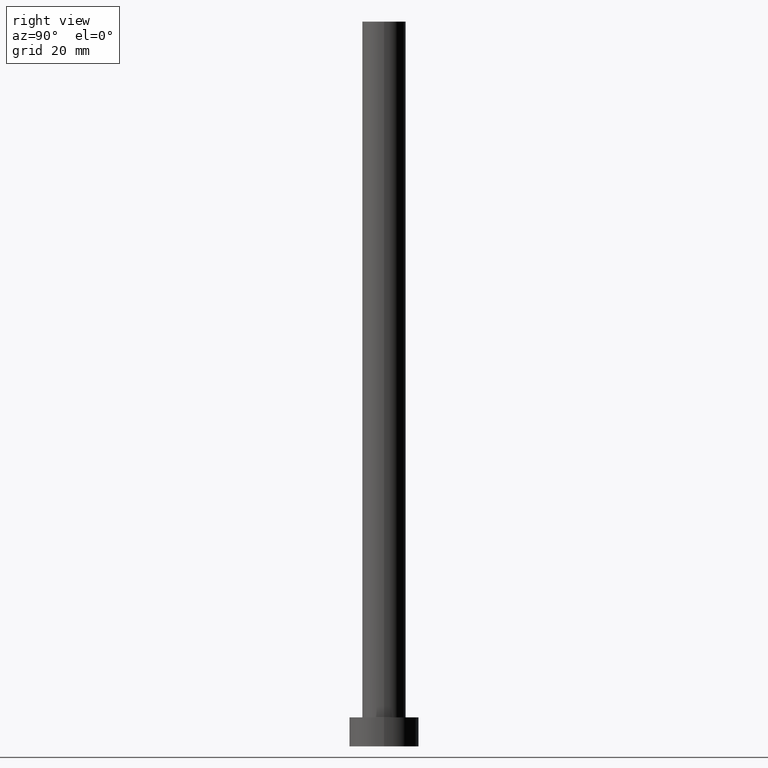
[diagram: clean part render]
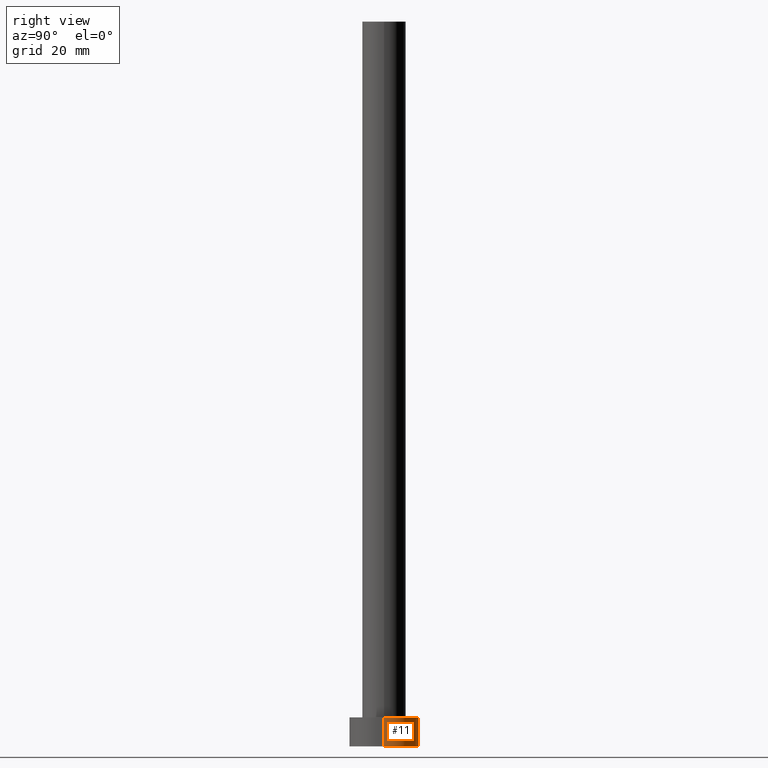
[diagram: same view with one face highlighted and labeled with its STEP entity id]
A machine part, right view. The second image highlights one B-rep face of the part: STEP entity #11.
In plain terms, the highlighted cylindrical surface (edge-blend (fillet) strip) has radius 6 mm, axis along (-0, -0, -1).
Its self-contained STEP definition (entity closure, byte-faithful):
#3 = CARTESIAN_POINT ( 'NONE',  ( -6.000000000000000888, 0.000000000000000000, 5.000000000000000000 ) ) ;
#9 = CIRCLE ( 'NONE', #78, 6.000000000000000888 ) ;
#11 = ADVANCED_FACE ( 'NONE', ( #29 ), #107, .T. ) ;
#14 = CARTESIAN_POINT ( 'NONE',  ( -6.000000000000000888, 0.000000000000000000, 5.000000000000000000 ) ) ;
#15 = CARTESIAN_POINT ( 'NONE',  ( 0.000000000000000000, 0.000000000000000000, 0.000000000000000000 ) ) ;
#29 = FACE_OUTER_BOUND ( 'NONE', #224, .T. ) ;
#30 = EDGE_CURVE ( 'NONE', #202, #43, #55, .T. ) ;
#43 = VERTEX_POINT ( 'NONE', #149 ) ;
#50 = AXIS2_PLACEMENT_3D ( 'NONE', #227, #244, #133 ) ;
#52 = ORIENTED_EDGE ( 'NONE', *, *, #30, .T. ) ;
#54 = ORIENTED_EDGE ( 'NONE', *, *, #124, .T. ) ;
#55 = LINE ( 'NONE', #74, #222 ) ;
#74 = CARTESIAN_POINT ( 'NONE',  ( 6.000000000000000888, 7.347880794884120722E-16, 5.000000000000000000 ) ) ;
#78 = AXIS2_PLACEMENT_3D ( 'NONE', #155, #115, #79 ) ;
#79 = DIRECTION ( 'NONE',  ( 1.000000000000000000, 0.000000000000000000, 0.000000000000000000 ) ) ;
#92 = CARTESIAN_POINT ( 'NONE',  ( -6.000000000000000888, 0.000000000000000000, 0.000000000000000000 ) ) ;
#97 = DIRECTION ( 'NONE',  ( 1.000000000000000000, 0.000000000000000000, 0.000000000000000000 ) ) ;
#105 = VERTEX_POINT ( 'NONE', #92 ) ;
#107 = CYLINDRICAL_SURFACE ( 'NONE', #50, 6.000000000000000888 ) ;
#110 = DIRECTION ( 'NONE',  ( -0.000000000000000000, -0.000000000000000000, -1.000000000000000000 ) ) ;
#115 = DIRECTION ( 'NONE',  ( 0.000000000000000000, 0.000000000000000000, 1.000000000000000000 ) ) ;
#124 = EDGE_CURVE ( 'NONE', #43, #105, #216, .T. ) ;
#125 = DIRECTION ( 'NONE',  ( -0.000000000000000000, -0.000000000000000000, -1.000000000000000000 ) ) ;
#133 = DIRECTION ( 'NONE',  ( -1.000000000000000000, 0.000000000000000000, 0.000000000000000000 ) ) ;
#136 = LINE ( 'NONE', #3, #206 ) ;
#143 = ORIENTED_EDGE ( 'NONE', *, *, #199, .F. ) ;
#149 = CARTESIAN_POINT ( 'NONE',  ( 6.000000000000000888, 7.347880794884120722E-16, 0.000000000000000000 ) ) ;
#155 = CARTESIAN_POINT ( 'NONE',  ( 0.000000000000000000, 0.000000000000000000, 5.000000000000000000 ) ) ;
#159 = AXIS2_PLACEMENT_3D ( 'NONE', #15, #172, #97 ) ;
#172 = DIRECTION ( 'NONE',  ( 0.000000000000000000, 0.000000000000000000, 1.000000000000000000 ) ) ;
#186 = VERTEX_POINT ( 'NONE', #14 ) ;
#199 = EDGE_CURVE ( 'NONE', #202, #186, #9, .T. ) ;
#202 = VERTEX_POINT ( 'NONE', #233 ) ;
#206 = VECTOR ( 'NONE', #125, 1000.000000000000000 ) ;
#216 = CIRCLE ( 'NONE', #159, 6.000000000000000888 ) ;
#220 = ORIENTED_EDGE ( 'NONE', *, *, #236, .F. ) ;
#222 = VECTOR ( 'NONE', #110, 1000.000000000000000 ) ;
#224 = EDGE_LOOP ( 'NONE', ( #143, #52, #54, #220 ) ) ;
#227 = CARTESIAN_POINT ( 'NONE',  ( 0.000000000000000000, 0.000000000000000000, 5.000000000000000000 ) ) ;
#233 = CARTESIAN_POINT ( 'NONE',  ( 6.000000000000000888, 7.347880794884120722E-16, 5.000000000000000000 ) ) ;
#236 = EDGE_CURVE ( 'NONE', #186, #105, #136, .T. ) ;
#244 = DIRECTION ( 'NONE',  ( -0.000000000000000000, -0.000000000000000000, -1.000000000000000000 ) ) ;